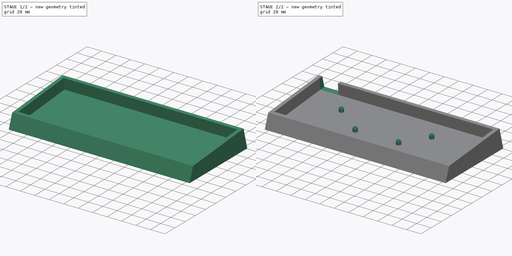
[diagram: build sequence overview — one tinted view per stage of 2, left to right]
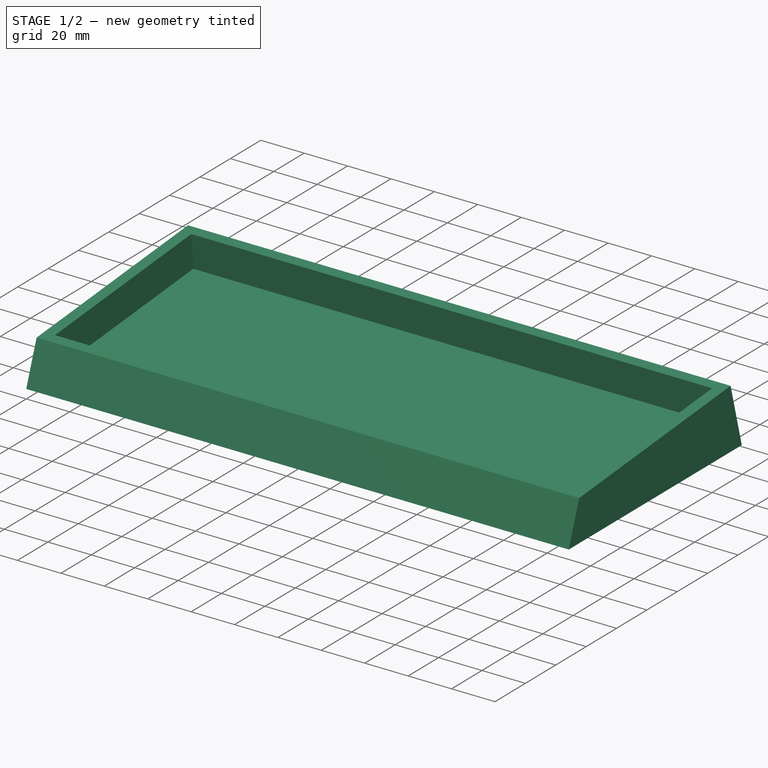
[diagram: stage 1 of 2 — iso view after this stage's code; geometry added in this stage tinted green]
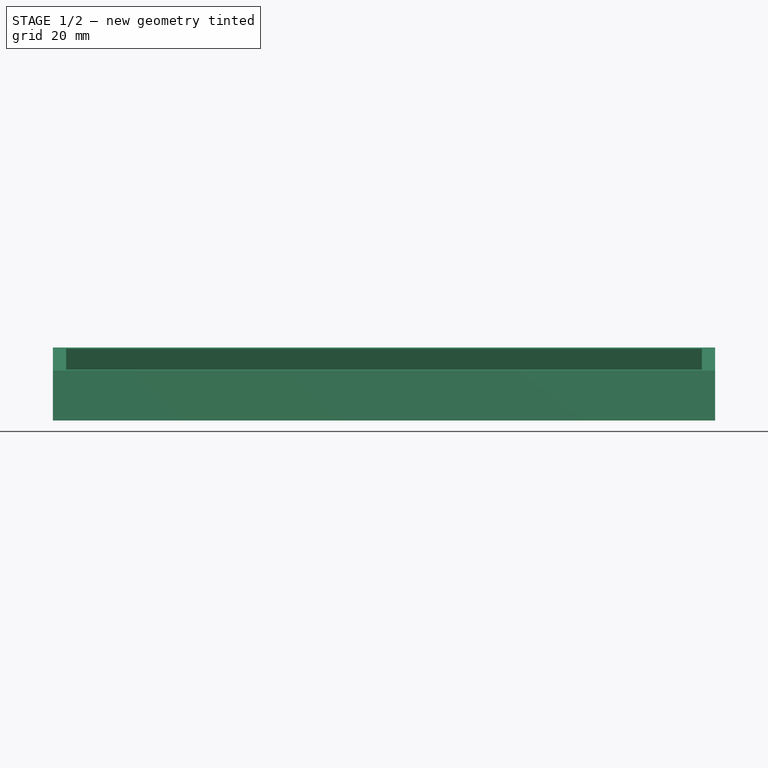
[diagram: stage 1 of 2 — front view after this stage's code; geometry added in this stage tinted green]
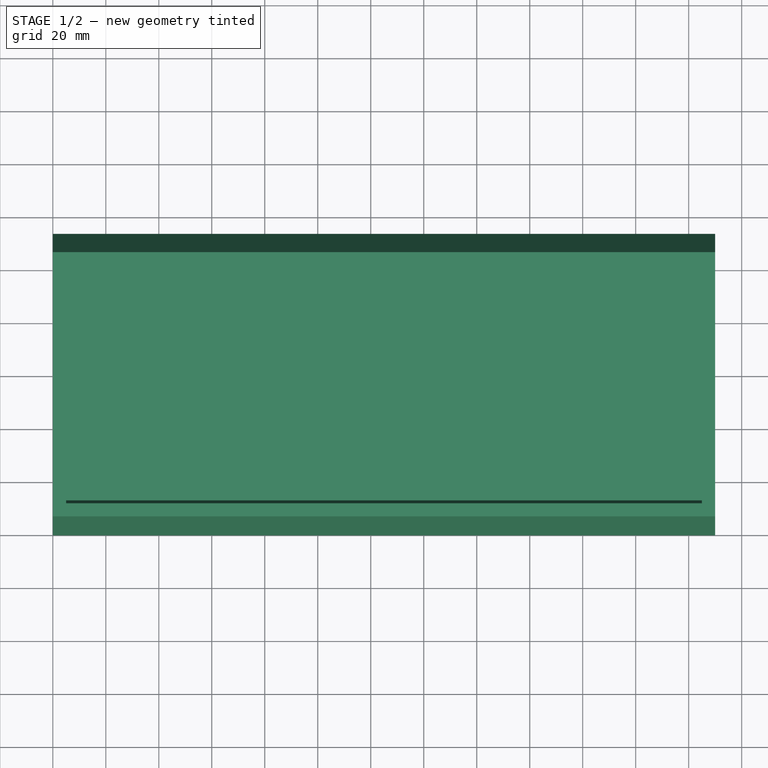
[diagram: stage 1 of 2 — top view after this stage's code; geometry added in this stage tinted green]
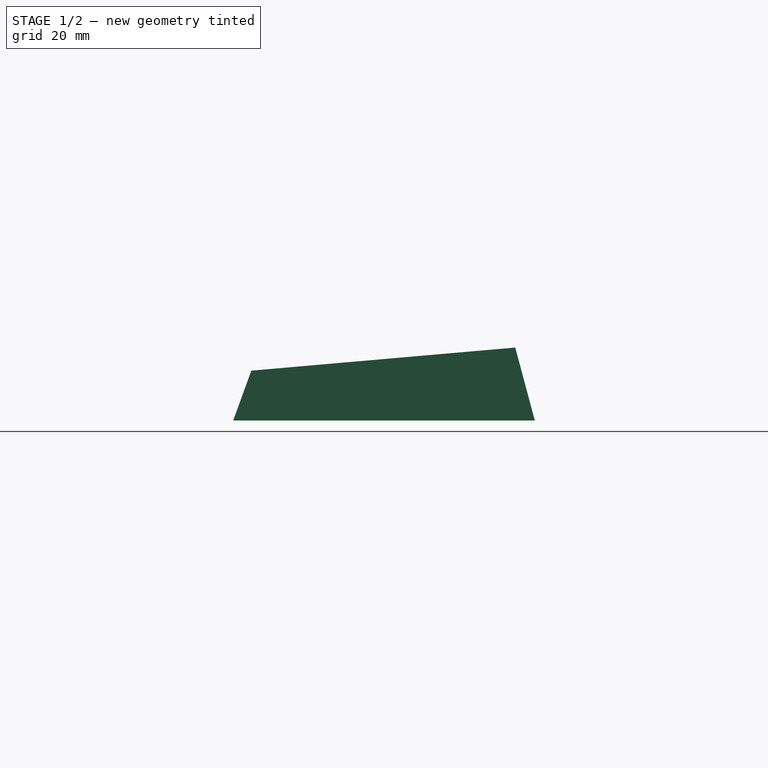
[diagram: stage 1 of 2 — right view after this stage's code; geometry added in this stage tinted green]
FCSTD DOCUMENT  (FreeCAD 0.20R)
Label: case
License: All rights reserved
LicenseURL: http://en.wikipedia.org/wiki/All_rights_reserved
objects: Sketcher::SketchObject×4, PartDesign::Pad×2, PartDesign::Pocket×2, PartDesign::Body×1
note: 13 computed .brp shape members not serialized (recipe doc carries the construction recipe); baked Part::Feature solids carry a one-line shape summary decoded from their .brp

FEATURE [Sketcher::SketchObject] Sketch
  FullyConstrained = true
  MapMode = 5
  Placement = pos=(0,0,0) rot=(0.57735,0.57735,0.57735;2.0944rad)
  Support = -> [YZ_Plane]
  sketch-geometry (4):
    g0: LineSegment StartX=0 StartY=0 StartZ=0 EndX=6.8404 EndY=18.7939 EndZ=0
    g1: LineSegment StartX=6.8404 StartY=18.7939 StartZ=0 EndX=106.46 EndY=27.5094 EndZ=0
    g2: LineSegment StartX=106.46 StartY=27.5094 StartZ=0 EndX=113.831 EndY=0 EndZ=0
    g3: LineSegment StartX=113.831 StartY=0 StartZ=0 EndX=0 EndY=0 EndZ=0
  constraints (11):
    c: Coincident(g-1,g0)
    c: Coincident(g0,g1)
    c: Coincident(g1,g2)
    c: PointOnObject(g2,g-1)
    c: Coincident(g2,g3)
    c: Coincident(g3,g0)
    c: Angle(g3,g0) = 1.22173
    c: Angle(g2,g3) = 1.309
    c: Distance(g0) = 20
    c: Angle(g3,g1) = 0.0872665
    c: Distance(g1) = 100
FEATURE [PartDesign::Pad] Pad
  Direction = (1,-2e-16,3e-16)
  Length = 250
  Length2 = 10
  Placement = pos=(0,0,0) rot=(0.57735,0.57735,0.57735;2.0944rad)
  Profile = -> Sketch
  ReferenceAxis = -> Sketch [N_Axis]
  Type = 0
FEATURE [Sketcher::SketchObject] Sketch001
  ExternalGeometry = -> [Pad]
  FullyConstrained = true
  MapMode = 5
  Placement = pos=(-7.7e-15,-1.5798,18.0572) rot=(0.043578,0.043578,-0.998099;1.5727rad)
  Support = -> [Pad]
  sketch-geometry (4):
    g0: LineSegment StartX=-103.452 StartY=5 StartZ=0 EndX=-13.4524 EndY=5 EndZ=0
    g1: LineSegment StartX=-13.4524 StartY=5 StartZ=0 EndX=-13.4524 EndY=245 EndZ=0
    g2: LineSegment StartX=-13.4524 StartY=245 StartZ=0 EndX=-103.452 EndY=245 EndZ=0
    g3: LineSegment StartX=-103.452 StartY=245 StartZ=0 EndX=-103.452 EndY=5 EndZ=0
  constraints (12):
    c: Coincident(g0,g1)
    c: Coincident(g1,g2)
    c: Coincident(g2,g3)
    c: Coincident(g3,g0)
    c: Horizontal(g0)
    c: Horizontal(g2)
    c: Vertical(g1)
    c: Vertical(g3)
    c: DistanceX(g-4,g2) = 5
    c: DistanceY(g2,g-4) = 5
    c: DistanceY(g-3,g0) = 5
    c: DistanceX(g0,g-3) = 5
FEATURE [PartDesign::Pocket] Pocket
  BaseFeature = -> Pad
  Direction = (4e-16,0.0871557,-0.996195)
  Length = 15
  Length2 = 5
  Placement = pos=(0,0,0) rot=(0.57735,0.57735,0.57735;2.0944rad)
  Profile = -> Sketch001
  ReferenceAxis = -> Sketch001 [N_Axis]
  Type = 0
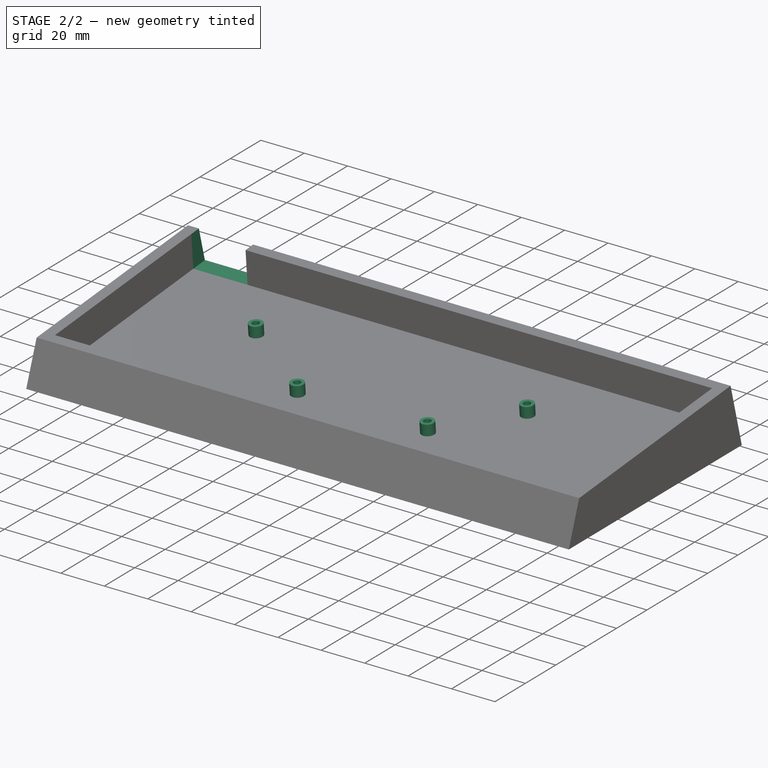
[diagram: stage 2 of 2 — iso view after this stage's code; geometry added in this stage tinted green]
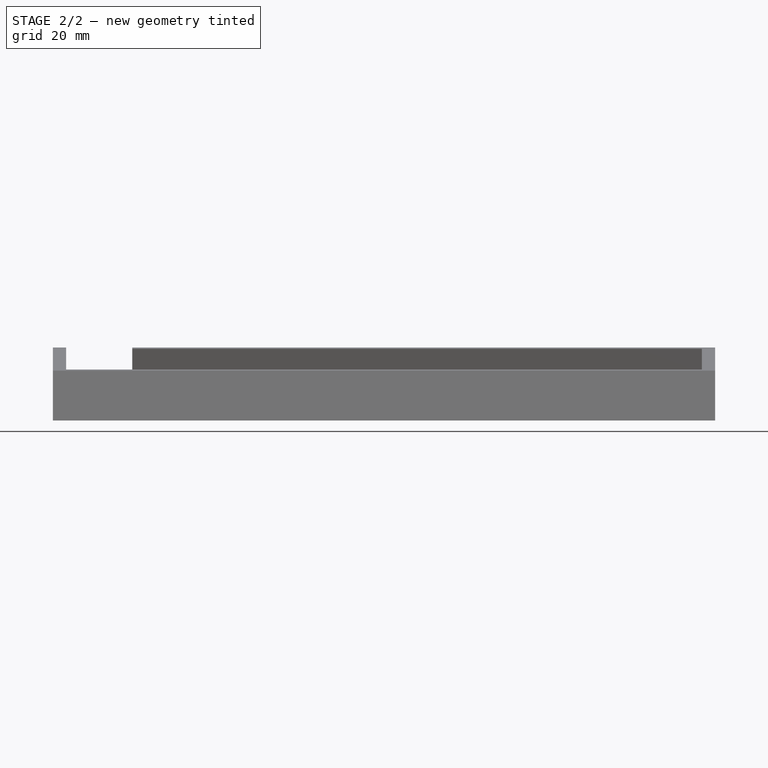
[diagram: stage 2 of 2 — front view after this stage's code; geometry added in this stage tinted green]
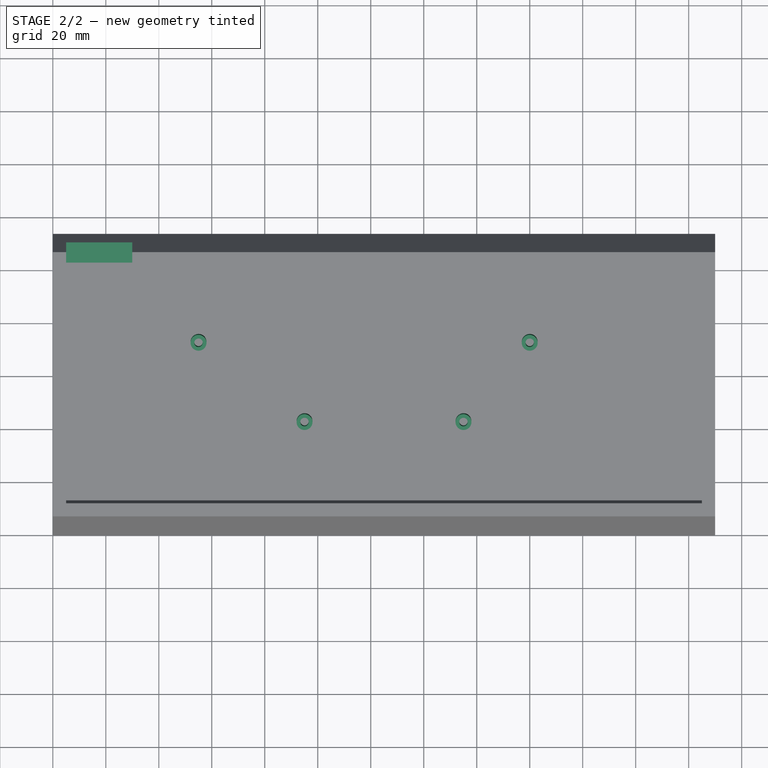
[diagram: stage 2 of 2 — top view after this stage's code; geometry added in this stage tinted green]
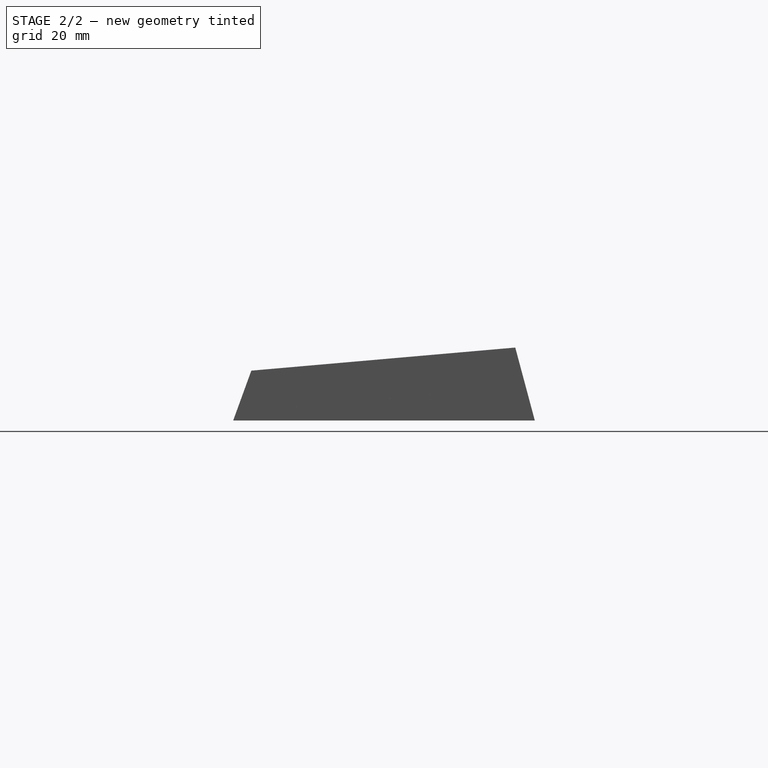
[diagram: stage 2 of 2 — right view after this stage's code; geometry added in this stage tinted green]
FEATURE [Sketcher::SketchObject] Sketch002
  ExternalGeometry = -> [Pocket]
  FullyConstrained = true
  MapMode = 5
  Placement = pos=(-2.5e-15,-0.272462,3.11426) rot=(0.043578,0.043578,-0.998099;1.5727rad)
  Support = -> [Pocket]
  sketch-geometry (8):
    g0: Circle CenterX=-73.4524 CenterY=55 CenterZ=0 NormalX=0 NormalY=0 NormalZ=1 AngleXU=0 Radius=3
    g1: Circle CenterX=-73.4524 CenterY=55 CenterZ=0 NormalX=0 NormalY=0 NormalZ=1 AngleXU=0 Radius=1.6
    g2: Circle CenterX=-73.4524 CenterY=180 CenterZ=0 NormalX=0 NormalY=0 NormalZ=1 AngleXU=0 Radius=3
    g3: Circle CenterX=-73.4524 CenterY=180 CenterZ=0 NormalX=0 NormalY=0 NormalZ=1 AngleXU=0 Radius=1.6
    g4: Circle CenterX=-43.4524 CenterY=95 CenterZ=0 NormalX=0 NormalY=0 NormalZ=1 AngleXU=0 Radius=3
    g5: Circle CenterX=-43.4524 CenterY=95 CenterZ=0 NormalX=0 NormalY=0 NormalZ=1 AngleXU=0 Radius=1.6
    g6: Circle CenterX=-43.4524 CenterY=155 CenterZ=0 NormalX=0 NormalY=0 NormalZ=1 AngleXU=0 Radius=3
    g7: Circle CenterX=-43.4524 CenterY=155 CenterZ=0 NormalX=0 NormalY=0 NormalZ=1 AngleXU=0 Radius=1.6
  constraints (20):
    c: Diameter(g0) = 6
    c: Coincident(g1,g0)
    c: Diameter(g1) = 3.2
    c: DistanceY(g-3,g0) = 50
    c: DistanceX(g-3,g0) = 30
    c: Coincident(g3,g2)
    c: DistanceX(g-3,g2) = 30
    c: DistanceY(g-3,g2) = 175
    c: Diameter(g3) = 3.2
    c: Diameter(g2) = 6
    c: Coincident(g5,g4)
    c: DistanceY(g-3,g4) = 90
    c: DistanceX(g4,g-4) = 30
    c: Diameter(g5) = 3.2
    c: Diameter(g4) = 6
    c: Coincident(g7,g6)
    c: DistanceX(g6,g-4) = 30
    c: DistanceY(g-4,g6) = 150
    c: Diameter(g6) = 6
    c: Diameter(g7) = 3.2
FEATURE [PartDesign::Pad] Pad001
  BaseFeature = -> Pocket
  Direction = (-8e-16,-0.0871557,0.996195)
  Length = 5
  Length2 = 10
  Placement = pos=(0,0,0) rot=(0.57735,0.57735,0.57735;2.0944rad)
  Profile = -> Sketch002
  ReferenceAxis = -> Sketch002 [N_Axis]
  Type = 0
FEATURE [Sketcher::SketchObject] Sketch003
  ExternalGeometry = -> [Pad001]
  FullyConstrained = true
  MapMode = 5
  Placement = pos=(-1.97e-14,-1.5798,18.0572) rot=(0.043578,0.043578,-0.998099;1.5727rad)
  Support = -> [Pad001]
  sketch-geometry (4):
    g0: LineSegment StartX=-103.452 StartY=5 StartZ=0 EndX=-113.398 EndY=5 EndZ=0
    g1: LineSegment StartX=-113.398 StartY=5 StartZ=0 EndX=-113.398 EndY=30 EndZ=0
    g2: LineSegment StartX=-113.398 StartY=30 StartZ=0 EndX=-103.452 EndY=30 EndZ=0
    g3: LineSegment StartX=-103.452 StartY=30 StartZ=0 EndX=-103.452 EndY=5 EndZ=0
  constraints (11):
    c: Coincident(g0,g1)
    c: Coincident(g1,g2)
    c: Coincident(g2,g3)
    c: Coincident(g3,g0)
    c: Horizontal(g0)
    c: Horizontal(g2)
    c: Vertical(g1)
    c: Vertical(g3)
    c: Coincident(g0,g-4)
    c: PointOnObject(g1,g-3)
    c: DistanceY(g1,g1) = 25
FEATURE [PartDesign::Pocket] Pocket001
  BaseFeature = -> Pad001
  Direction = (1.1e-15,0.0871557,-0.996195)
  Length = 0
  Length2 = 5
  Placement = pos=(0,0,0) rot=(0.57735,0.57735,0.57735;2.0944rad)
  Profile = -> Sketch003
  ReferenceAxis = -> Sketch003 [N_Axis]
  Type = 3
  UpToFace = -> Pad001 [Face11]
FEATURE [PartDesign::Body] Body
  Group = -> [Sketch,Pad,Sketch001,Pocket,Sketch002,Pad001,Sketch003,Pocket001]
  Origin = -> Origin
  Tip = -> Pocket001
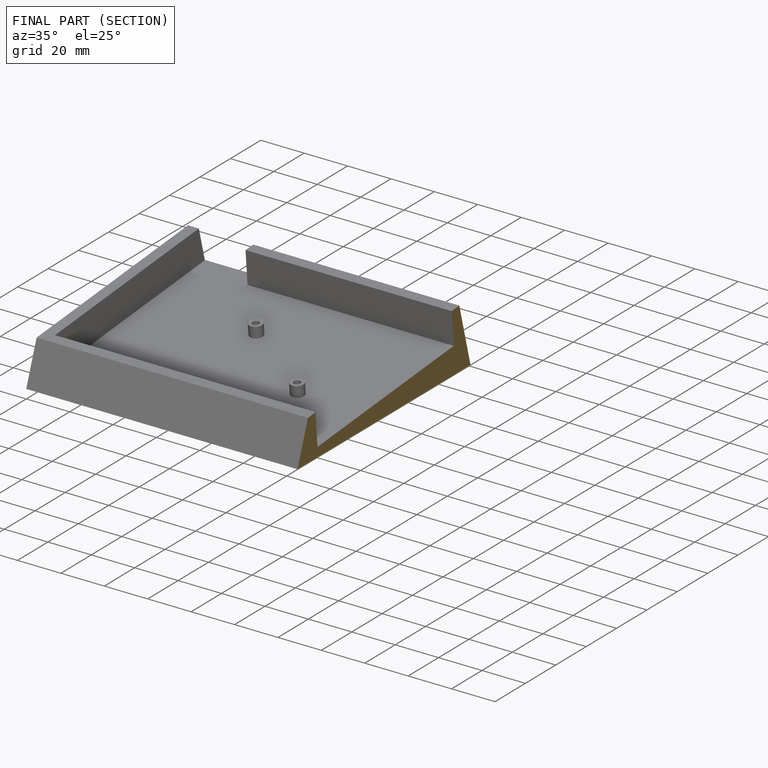
[diagram: finished part — half-section view (interior)]
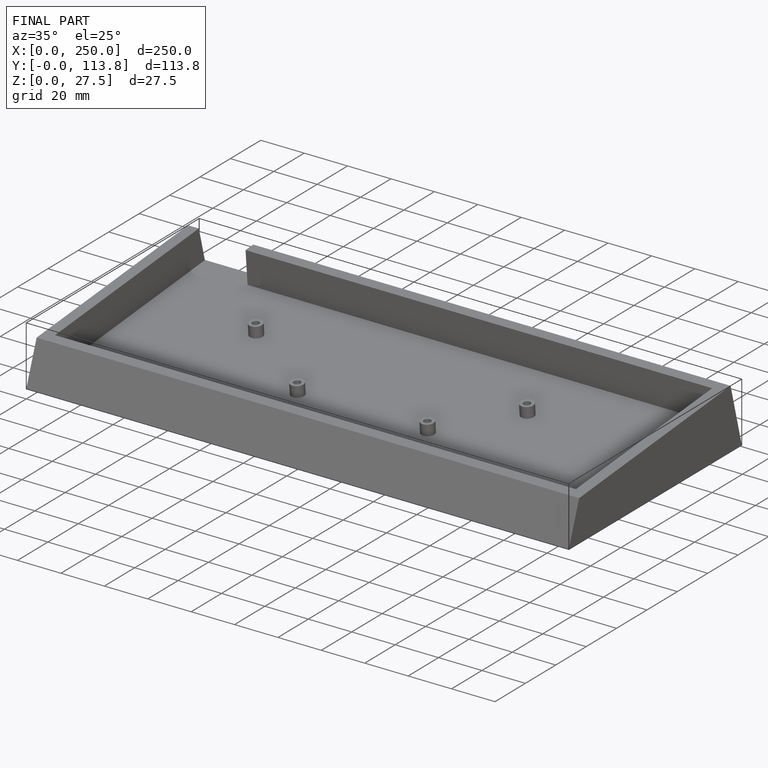
[diagram: finished part — iso view with bounding-box wireframe]
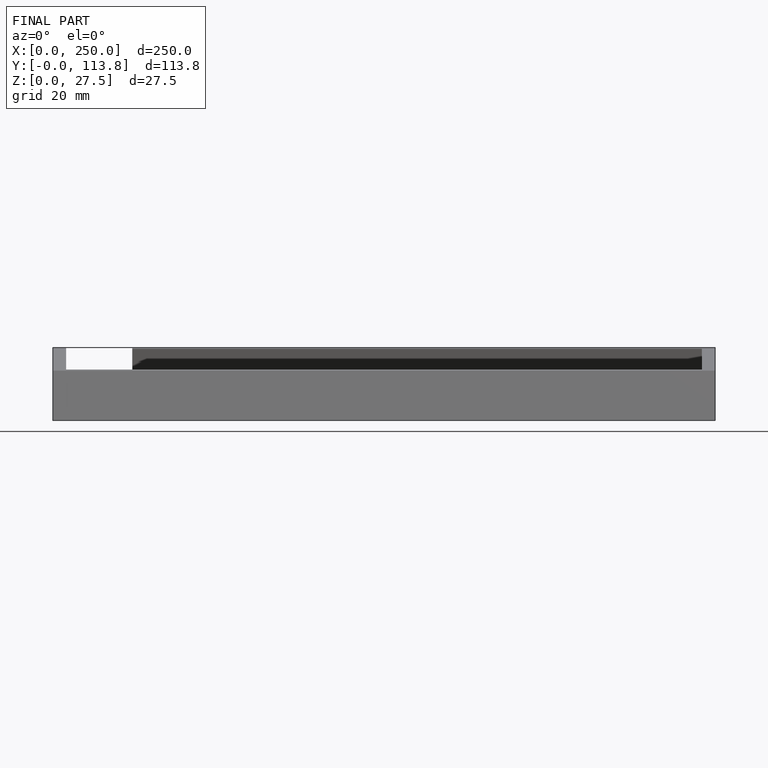
[diagram: finished part — front view with bounding-box wireframe]
